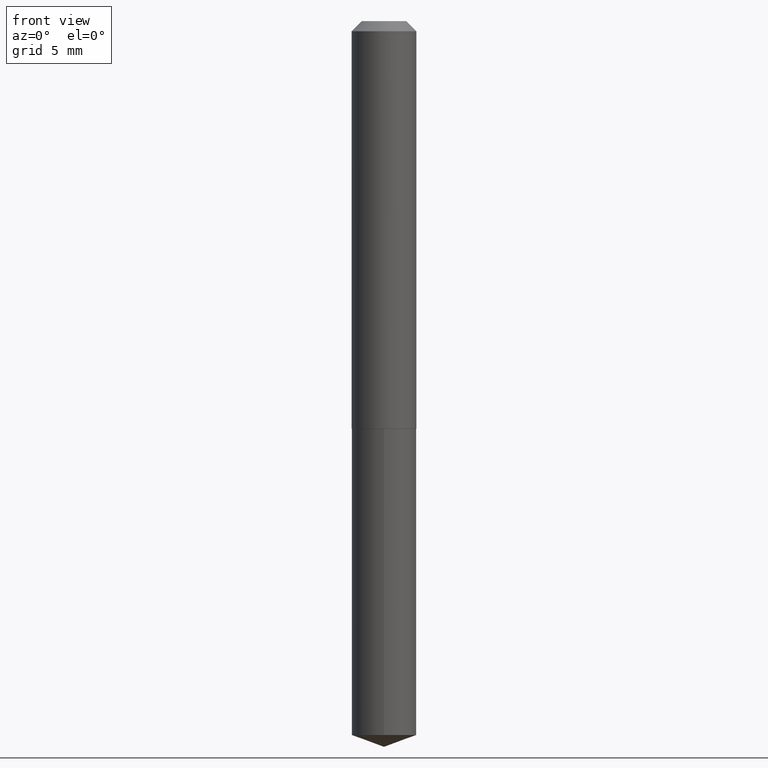
[diagram: clean part render]
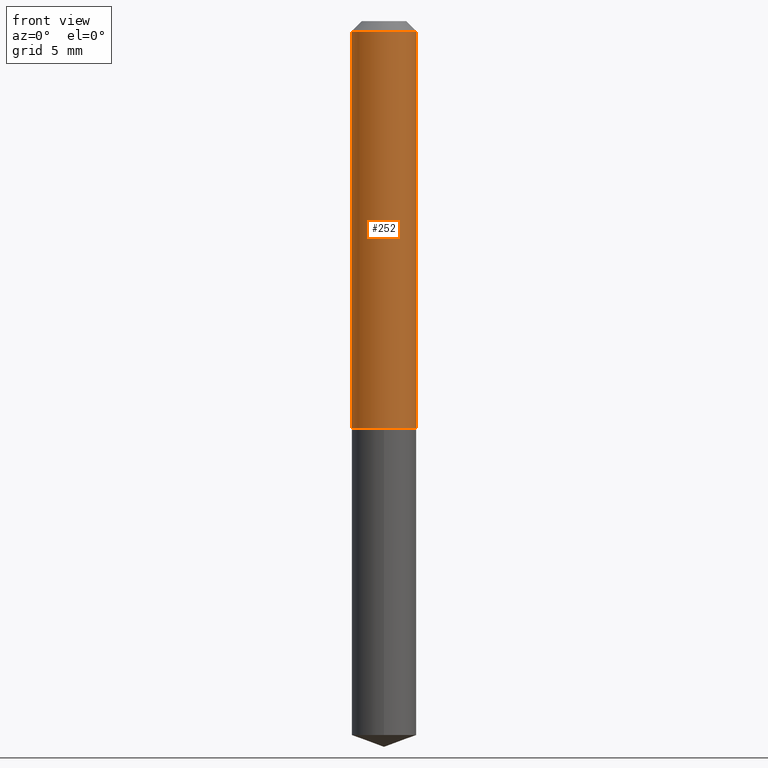
[diagram: same view with one face highlighted and labeled with its STEP entity id]
A machine part, front view. The second image highlights one B-rep face of the part: STEP entity #252.
In plain terms, the highlighted cylindrical surface (edge-blend (fillet) strip) has radius 2.5527 mm, axis along (-0, 0, 1).
Its self-contained STEP definition (entity closure, byte-faithful):
#24 = AXIS2_PLACEMENT_3D ( 'NONE', #321, #384, #51 ) ;
#51 = DIRECTION ( 'NONE',  ( 1.000000000000000000, -6.982962677686266711E-15, 0.000000000000000000 ) ) ;
#78 = LINE ( 'NONE', #136, #110 ) ;
#87 = CARTESIAN_POINT ( 'NONE',  ( 0.000000000000000000, 0.000000000000000000, 0.000000000000000000 ) ) ;
#88 = CARTESIAN_POINT ( 'NONE',  ( 0.1005000000000001864, -5.111528680066364398E-15, -1.263000000000000123 ) ) ;
#93 = VERTEX_POINT ( 'NONE', #366 ) ;
#110 = VECTOR ( 'NONE', #245, 39.37007874015748143 ) ;
#124 = VECTOR ( 'NONE', #311, 39.37007874015748143 ) ;
#136 = CARTESIAN_POINT ( 'NONE',  ( 0.1005000000000000893, -7.017877491074704671E-16, 4.900557659674919900E-30 ) ) ;
#152 = VERTEX_POINT ( 'NONE', #88 ) ;
#190 = EDGE_CURVE ( 'NONE', #93, #359, #202, .T. ) ;
#202 = CIRCLE ( 'NONE', #24, 0.1005000000000000060 ) ;
#206 = ORIENTED_EDGE ( 'NONE', *, *, #190, .F. ) ;
#213 = CARTESIAN_POINT ( 'NONE',  ( 3.088627102211827979E-29, -4.409740930958893142E-15, -1.263000000000000123 ) ) ;
#238 = CARTESIAN_POINT ( 'NONE',  ( -0.1005000000000000893, 7.140954494389013210E-16, -4.943529765706185016E-30 ) ) ;
#245 = DIRECTION ( 'NONE',  ( -2.445468806185136877E-29, 3.491481338843145188E-15, 1.000000000000000000 ) ) ;
#251 = FACE_OUTER_BOUND ( 'NONE', #364, .T. ) ;
#252 = ADVANCED_FACE ( 'NONE', ( #251 ), #383, .T. ) ;
#253 = DIRECTION ( 'NONE',  ( -2.445468806185136597E-29, 3.491481338843145583E-15, 1.000000000000000000 ) ) ;
#258 = ORIENTED_EDGE ( 'NONE', *, *, #330, .T. ) ;
#265 = AXIS2_PLACEMENT_3D ( 'NONE', #87, #253, #285 ) ;
#270 = CARTESIAN_POINT ( 'NONE',  ( 0.1005000000000000060, -8.108965409463188774E-16, -0.03125000000000020123 ) ) ;
#276 = EDGE_CURVE ( 'NONE', #331, #93, #281, .T. ) ;
#281 = LINE ( 'NONE', #238, #124 ) ;
#283 = EDGE_CURVE ( 'NONE', #152, #359, #78, .T. ) ;
#285 = DIRECTION ( 'NONE',  ( 1.000000000000000000, -6.982962677686266711E-15, 4.876176775795935793E-29 ) ) ;
#300 = ORIENTED_EDGE ( 'NONE', *, *, #283, .T. ) ;
#302 = ORIENTED_EDGE ( 'NONE', *, *, #276, .F. ) ;
#311 = DIRECTION ( 'NONE',  ( -2.445468806185136877E-29, 3.491481338843145188E-15, 1.000000000000000000 ) ) ;
#321 = CARTESIAN_POINT ( 'NONE',  ( 7.642090019328600035E-31, -1.091087918388489897E-16, -0.03125000000000020123 ) ) ;
#330 = EDGE_CURVE ( 'NONE', #331, #152, #388, .T. ) ;
#331 = VERTEX_POINT ( 'NONE', #371 ) ;
#335 = DIRECTION ( 'NONE',  ( 1.000000000000000000, -6.982962677686267499E-15, 0.000000000000000000 ) ) ;
#342 = DIRECTION ( 'NONE',  ( -2.445468806185136597E-29, 3.491481338843145583E-15, 1.000000000000000000 ) ) ;
#357 = AXIS2_PLACEMENT_3D ( 'NONE', #213, #342, #335 ) ;
#359 = VERTEX_POINT ( 'NONE', #270 ) ;
#364 = EDGE_LOOP ( 'NONE', ( #302, #258, #300, #206 ) ) ;
#366 = CARTESIAN_POINT ( 'NONE',  ( -0.1005000000000000060, -1.545329411959969209E-15, -0.03125000000000020123 ) ) ;
#371 = CARTESIAN_POINT ( 'NONE',  ( -0.1005000000000001864, -3.695645481519991426E-15, -1.263000000000000123 ) ) ;
#383 = CYLINDRICAL_SURFACE ( 'NONE', #265, 0.1005000000000000893 ) ;
#384 = DIRECTION ( 'NONE',  ( -2.445468806185136597E-29, 3.491481338843145583E-15, 1.000000000000000000 ) ) ;
#388 = CIRCLE ( 'NONE', #357, 0.1005000000000001864 ) ;